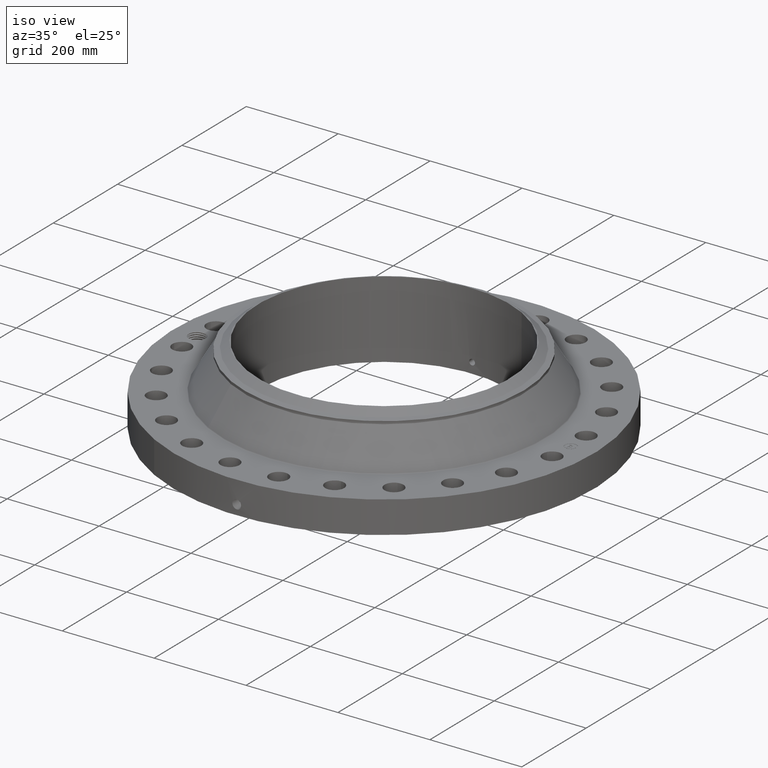
[diagram: clean part render]
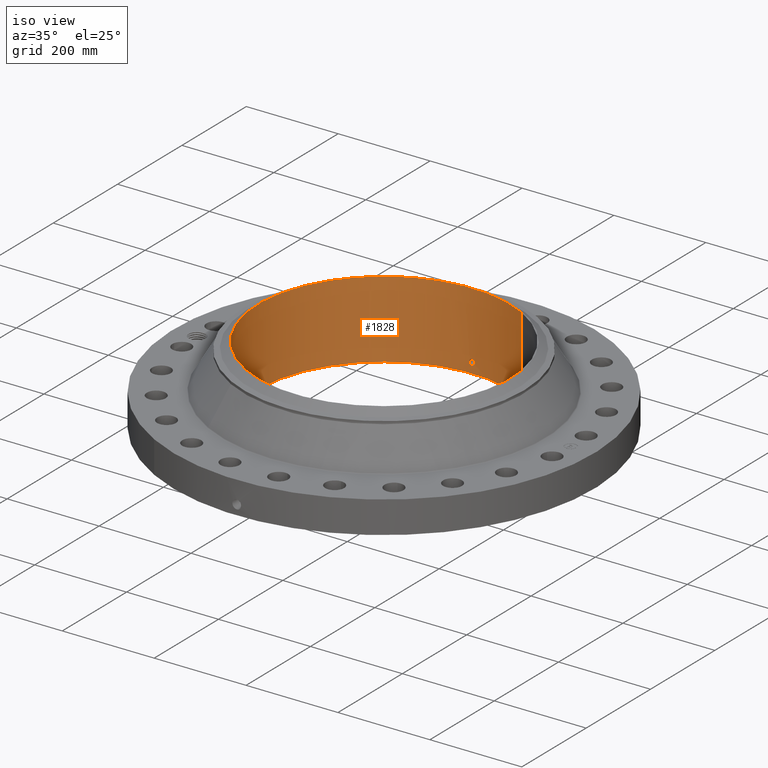
[diagram: same view with one face highlighted and labeled with its STEP entity id]
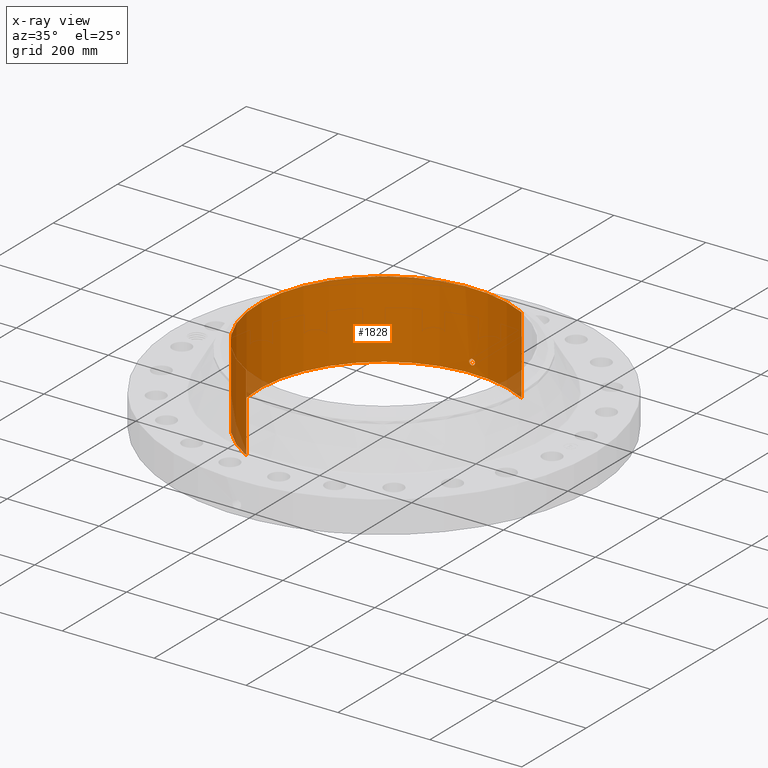
[diagram: x-ray of the same camera — body ghosted, the highlighted face saturated]
A machine part, iso view. The second image highlights one B-rep face of the part: STEP entity #1828.
The next image is the same camera in x-ray: the body ghosted, the highlighted face saturated — about 3% of this face is hidden behind the body in this view.
In plain terms, the highlighted cylindrical surface (partial cylindrical patch) has radius 273.837 mm, axis along (0, 0, -1).
Its self-contained STEP definition (entity closure, byte-faithful):
#262=AXIS2_PLACEMENT_3D('Circle Axis2P3D',#260,#261,$) ;
#1705=AXIS2_PLACEMENT_3D('Cylinder Axis2P3D',#1702,#1703,#1704) ;
#1777=AXIS2_PLACEMENT_3D('Circle Axis2P3D',#1775,#1776,$) ;
#255=CARTESIAN_POINT('Vertex',(5.16868673171,9.46121759978,0.0600000000002)) ;
#257=CARTESIAN_POINT('Vertex',(-5.16868673171,-9.46121759978,0.0600000000002)) ;
#260=CARTESIAN_POINT('Axis2P3D Location',(0.,0.,0.0600000000002)) ;
#1702=CARTESIAN_POINT('Axis2P3D Location',(0.,0.,3.37000000001)) ;
#1711=CARTESIAN_POINT('Vertex',(5.16868673171,9.46121759978,6.68000000003)) ;
#1713=CARTESIAN_POINT('Vertex',(-5.16868673171,-9.46121759978,6.68000000003)) ;
#1716=CARTESIAN_POINT('Line Origine',(5.16868673171,9.46121759978,3.37000000001)) ;
#1721=CARTESIAN_POINT('Line Origine',(-5.16868673171,-9.46121759978,3.37000000001)) ;
#1775=CARTESIAN_POINT('Axis2P3D Location',(0.,0.,6.68000000003)) ;
#1787=CARTESIAN_POINT('Control Point',(0.219395640473,10.7787673949,1.05985638466)) ;
#1788=CARTESIAN_POINT('Control Point',(0.194442770616,10.7792752963,1.10553230655)) ;
#1789=CARTESIAN_POINT('Control Point',(0.157604157815,10.7799528878,1.14471304465)) ;
#1790=CARTESIAN_POINT('Control Point',(0.111105136868,10.7806119043,1.17324429369)) ;
#1791=CARTESIAN_POINT('Control Point',(0.0336693198009,10.7811362237,1.19588317002)) ;
#1792=CARTESIAN_POINT('Control Point',(-0.044675818328,10.7809550036,1.1880557226)) ;
#1793=CARTESIAN_POINT('Control Point',(-0.0703069158899,10.7808143238,1.18204225644)) ;
#1794=CARTESIAN_POINT('Control Point',(-0.143964712416,10.7801926827,1.15420716062)) ;
#1795=CARTESIAN_POINT('Control Point',(-0.203253392489,10.7791780658,1.0994869714)) ;
#1796=CARTESIAN_POINT('Control Point',(-0.232216721966,10.7785126908,1.05324381176)) ;
#1797=CARTESIAN_POINT('Control Point',(-0.255841712236,10.7779658439,0.975098637056)) ;
#1798=CARTESIAN_POINT('Control Point',(-0.248280648447,10.7781407167,0.895737961657)) ;
#1799=CARTESIAN_POINT('Control Point',(-0.242046922579,10.7782869792,0.869178886937)) ;
#1800=CARTESIAN_POINT('Control Point',(-0.232314164031,10.7785044458,0.843790814108)) ;
#1801=CARTESIAN_POINT('Control Point',(-0.219395640473,10.7787673949,0.820143615352)) ;
#1802=CARTESIAN_POINT('Vertex',(0.219395640473,10.7787673949,1.05985638466)) ;
#1804=CARTESIAN_POINT('Vertex',(-0.219395640473,10.7787673949,0.820143615352)) ;
#1808=CARTESIAN_POINT('Control Point',(-0.219395640473,10.7787673949,0.820143615352)) ;
#1809=CARTESIAN_POINT('Control Point',(-0.19444277063,10.7792752963,0.774467693483)) ;
#1810=CARTESIAN_POINT('Control Point',(-0.157604157859,10.7799528878,0.735286955409)) ;
#1811=CARTESIAN_POINT('Control Point',(-0.1111051368,10.7806119043,0.706755706299)) ;
#1812=CARTESIAN_POINT('Control Point',(-0.0336693197624,10.7811362237,0.68411682999)) ;
#1813=CARTESIAN_POINT('Control Point',(0.0446758183351,10.7809550036,0.69194427741)) ;
#1814=CARTESIAN_POINT('Control Point',(0.0703069158961,10.7808143238,0.697957743572)) ;
#1815=CARTESIAN_POINT('Control Point',(0.143964712536,10.7801926827,0.725792839436)) ;
#1816=CARTESIAN_POINT('Control Point',(0.203253392676,10.7791780658,0.780513028781)) ;
#1817=CARTESIAN_POINT('Control Point',(0.232216721898,10.7785126908,0.826756188018)) ;
#1818=CARTESIAN_POINT('Control Point',(0.255841712221,10.7779658439,0.904901362746)) ;
#1819=CARTESIAN_POINT('Control Point',(0.248280648463,10.7781407167,0.984262038171)) ;
#1820=CARTESIAN_POINT('Control Point',(0.242046922512,10.7782869792,1.01082111324)) ;
#1821=CARTESIAN_POINT('Control Point',(0.232314163987,10.7785044458,1.03620918598)) ;
#1822=CARTESIAN_POINT('Control Point',(0.219395640473,10.7787673949,1.05985638466)) ;
#261=DIRECTION('Axis2P3D Direction',(0.,0.,-0.0393700787402)) ;
#1703=DIRECTION('Axis2P3D Direction',(0.,0.,-0.0393700787402)) ;
#1704=DIRECTION('Axis2P3D XDirection',(-0.0188750212049,-0.0345504945626,0.)) ;
#1717=DIRECTION('Vector Direction',(0.,0.,-0.0393700787402)) ;
#1722=DIRECTION('Vector Direction',(0.,0.,-0.0393700787402)) ;
#1776=DIRECTION('Axis2P3D Direction',(0.,0.,-0.0393700787402)) ;
#1718=VECTOR('Line Direction',#1717,0.0393700787402) ;
#1723=VECTOR('Line Direction',#1722,0.0393700787402) ;
#1781=ORIENTED_EDGE('',*,*,#1779,.F.) ;
#1782=ORIENTED_EDGE('',*,*,#1725,.T.) ;
#1783=ORIENTED_EDGE('',*,*,#264,.T.) ;
#1784=ORIENTED_EDGE('',*,*,#1720,.F.) ;
#1825=ORIENTED_EDGE('',*,*,#1806,.F.) ;
#1826=ORIENTED_EDGE('',*,*,#1823,.F.) ;
#1827=FACE_BOUND('',#1824,.T.) ;
#1828=ADVANCED_FACE('PartBody',(#1785,#1827),#1706,.F.) ;
#1786=B_SPLINE_CURVE_WITH_KNOTS('',5,(#1787,#1788,#1789,#1790,#1791,#1792,#1793,#1794,#1795,#1796,#1797,#1798,#1799,#1800,#1801),.UNSPECIFIED.,.F.,.U.,(6,3,3,3,6),(0.,9.34843112706,14.0229867679,23.3730319163,28.2128731223),.UNSPECIFIED.) ;
#1807=B_SPLINE_CURVE_WITH_KNOTS('',5,(#1808,#1809,#1810,#1811,#1812,#1813,#1814,#1815,#1816,#1817,#1818,#1819,#1820,#1821,#1822),.UNSPECIFIED.,.F.,.U.,(6,3,3,3,6),(0.,9.34843112149,14.0229867623,23.3730319324,28.2128731217),.UNSPECIFIED.) ;
#263=CIRCLE('generated circle',#262,10.781) ;
#1778=CIRCLE('generated circle',#1777,10.781) ;
#1706=CYLINDRICAL_SURFACE('generated cylinder',#1705,10.781) ;
#264=EDGE_CURVE('',#258,#256,#263,.T.) ;
#1720=EDGE_CURVE('',#1712,#256,#1719,.T.) ;
#1725=EDGE_CURVE('',#1714,#258,#1724,.T.) ;
#1779=EDGE_CURVE('',#1714,#1712,#1778,.T.) ;
#1806=EDGE_CURVE('',#1803,#1805,#1786,.T.) ;
#1823=EDGE_CURVE('',#1805,#1803,#1807,.T.) ;
#1780=EDGE_LOOP('',(#1781,#1782,#1783,#1784)) ;
#1824=EDGE_LOOP('',(#1825,#1826)) ;
#1785=FACE_OUTER_BOUND('',#1780,.T.) ;
#1719=LINE('Line',#1716,#1718) ;
#1724=LINE('Line',#1721,#1723) ;
#256=VERTEX_POINT('',#255) ;
#258=VERTEX_POINT('',#257) ;
#1712=VERTEX_POINT('',#1711) ;
#1714=VERTEX_POINT('',#1713) ;
#1803=VERTEX_POINT('',#1802) ;
#1805=VERTEX_POINT('',#1804) ;